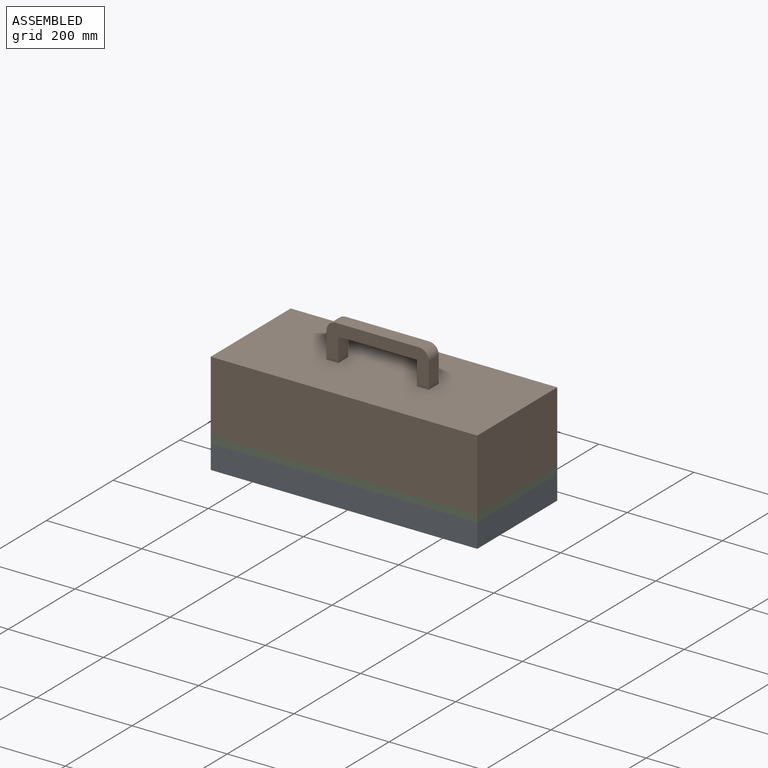
[diagram: assembled view]
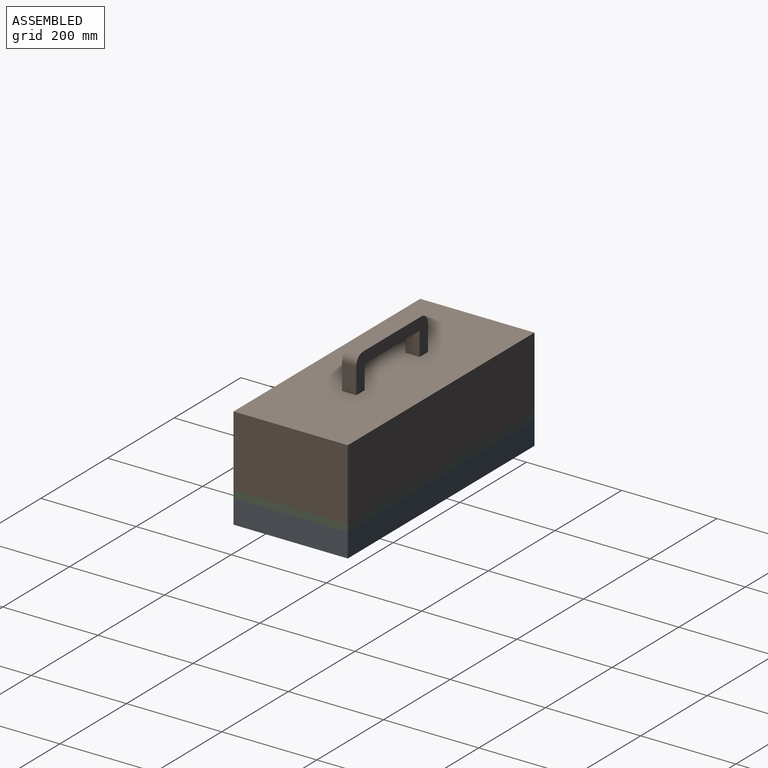
[diagram: assembled view, second angle]
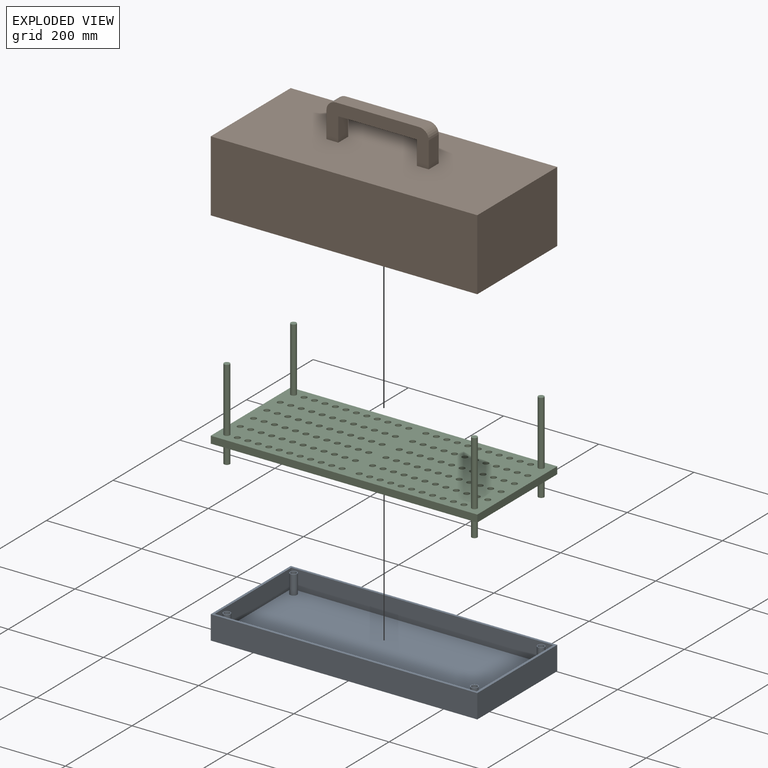
[diagram: exploded view]
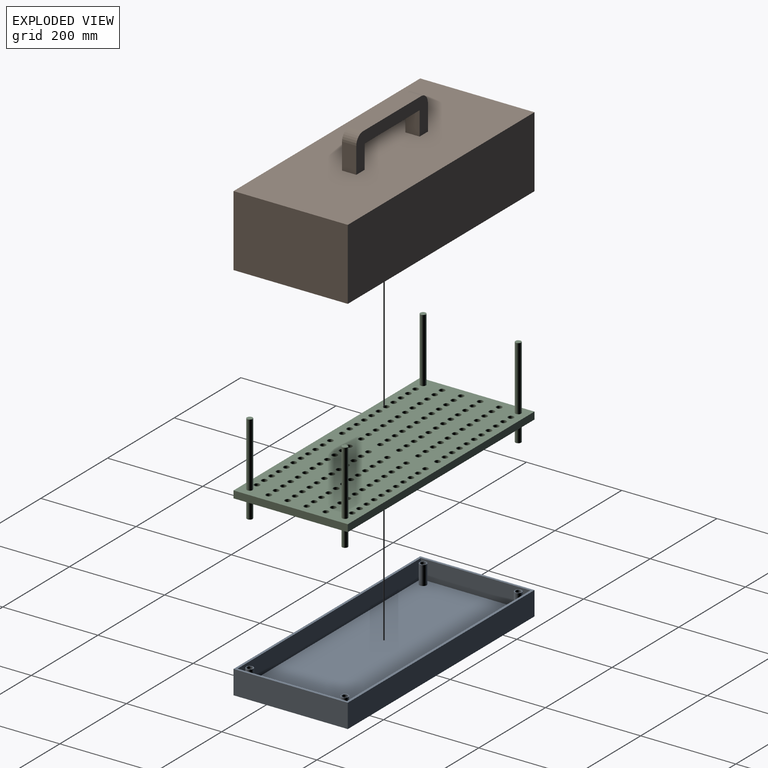
[diagram: exploded view, second angle]
ASSEMBLY  parts=3 mates=4
PART A: 27 faces, bbox 560x240x50 mm
  f0: plane 550x40mm, normal (0,1,0), area 22000mm2, adj f1,f7,f8,f10
  f1: plane 230x40mm, normal (1,0,0), area 9200mm2, adj f0,f2,f8,f10
  f2: plane 550x40mm, normal (0,-1,0), area 22000mm2, adj f1,f7,f8,f10
  f3: plane 240x50mm, normal (-1,0,0), area 12000mm2, adj f4,f6,f8,f9
  f4: plane 560x50mm, normal (0,-1,0), area 28000mm2, adj f3,f5,f8,f9
  f5: plane 240x50mm, normal (1,0,0), area 12000mm2, adj f4,f6,f8,f9
  f6: plane 560x50mm, normal (0,1,0), area 28000mm2, adj f3,f5,f8,f9
  f7: plane 230x40mm, normal (-1,0,0), area 9200mm2, adj f0,f2,f8,f10
  f8: plane 560x240mm, normal (0,0,1), area 7900mm2, adj f0,f1,f2,f3,f4,f5,f6,f7
  f9: plane 560x240mm, normal (0,0,-1), area 134400mm2, adj f3,f4,f5,f6
  f10: plane 550x230mm, normal (0,0,1), area 125793.1mm2, adj f0,f1,f2,f7,f12,f15,f19,f24
  f11: cylinder r=6mm len=40mm, axis (0,0,-1), area 1508mm2, adj f13,f14
  f12: cylinder r=7.5mm len=40mm, axis (0,0,-1), area 1885mm2, adj f10,f13
  f13: plane 15x15mm, normal (0,0,1), area 63.6mm2, adj f11,f12
  f14: plane 12x12mm, normal (0,0,1), area 113.1mm2, adj f11
  f15: cylinder r=7.5mm len=40mm, axis (0,0,-1), area 1885mm2, adj f10,f17
  f16: cylinder r=6mm len=40mm, axis (0,0,-1), area 1508mm2, adj f17,f18
  f17: plane 15x15mm, normal (0,0,1), area 63.6mm2, adj f15,f16
  f18: plane 12x12mm, normal (0,0,1), area 113.1mm2, adj f16
  f19: cylinder r=7.5mm len=40mm, axis (0,0,-1), area 1885mm2, adj f10,f21
  f20: cylinder r=6mm len=40mm, axis (0,0,-1), area 1508mm2, adj f21,f22
  f21: plane 15x15mm, normal (0,0,1), area 63.6mm2, adj f19,f20
  f22: plane 12x12mm, normal (0,0,1), area 113.1mm2, adj f20
  f23: cylinder r=6mm len=40mm, axis (0,0,-1), area 1508mm2, adj f25,f26
  f24: cylinder r=7.5mm len=40mm, axis (0,0,-1), area 1885mm2, adj f10,f25
  f25: plane 15x15mm, normal (0,0,1), area 63.6mm2, adj f23,f24
  f26: plane 12x12mm, normal (0,0,1), area 113.1mm2, adj f23
PART B: 37 faces, bbox 560x240x225 mm
  f0: plane 560x240mm, normal (0,0,-1), area 132900mm2, adj f4,f5,f6,f7,f27,f28,f29,f30
  f1: plane 550x135mm, normal (0,1,0), area 74250mm2, adj f2,f8,f9,f10
  f2: plane 230x135mm, normal (1,0,0), area 31050mm2, adj f1,f3,f9,f10
  f3: plane 550x135mm, normal (0,-1,0), area 74250mm2, adj f2,f8,f9,f10
  f4: plane 240x150mm, normal (-1,0,0), area 36000mm2, adj f0,f5,f7,f9
  f5: plane 560x150mm, normal (0,-1,0), area 84000mm2, adj f0,f4,f6,f9
  f6: plane 240x150mm, normal (1,0,0), area 36000mm2, adj f0,f5,f7,f9
  f7: plane 560x150mm, normal (0,1,0), area 84000mm2, adj f0,f4,f6,f9
  f8: plane 230x135mm, normal (-1,0,0), area 31050mm2, adj f1,f3,f9,f10
  f9: plane 560x240mm, normal (0,0,1), area 7900mm2, adj f1,f2,f3,f4,f5,f6,f7,f8
  f10: plane 550x230mm, normal (0,0,1), area 125793.1mm2, adj f1,f2,f3,f8,f12,f15,f19,f24
  f11: cylinder r=6mm len=135mm, axis (0,0,-1), area 5089.4mm2, adj f13,f14
  f12: cylinder r=7.5mm len=135mm, axis (0,0,-1), area 6361.7mm2, adj f10,f13
  f13: plane 15x15mm, normal (0,0,1), area 63.6mm2, adj f11,f12
  f14: plane 12x12mm, normal (0,0,1), area 113.1mm2, adj f11
  f15: cylinder r=7.5mm len=135mm, axis (0,0,-1), area 6361.7mm2, adj f10,f17
  f16: cylinder r=6mm len=135mm, axis (0,0,-1), area 5089.4mm2, adj f17,f18
  f17: plane 15x15mm, normal (0,0,1), area 63.6mm2, adj f15,f16
  f18: plane 12x12mm, normal (0,0,1), area 113.1mm2, adj f16
  f19: cylinder r=7.5mm len=135mm, axis (0,0,-1), area 6361.7mm2, adj f10,f21
  f20: cylinder r=6mm len=135mm, axis (0,0,-1), area 5089.4mm2, adj f21,f22
  f21: plane 15x15mm, normal (0,0,1), area 63.6mm2, adj f19,f20
  f22: plane 12x12mm, normal (0,0,1), area 113.1mm2, adj f20
  f23: cylinder r=6mm len=135mm, axis (0,0,-1), area 5089.4mm2, adj f25,f26
  f24: cylinder r=7.5mm len=135mm, axis (0,0,-1), area 6361.7mm2, adj f10,f25
  f25: plane 15x15mm, normal (0,0,1), area 63.6mm2, adj f23,f24
  f26: plane 12x12mm, normal (0,0,1), area 113.1mm2, adj f23
  f27: plane 215x75mm, normal (0,1,0), area 7703.3mm2, adj f0,f28,f30,f31,f32,f33,f34,f35
  f28: plane 55x30mm, normal (-1,0,0), area 1650mm2, adj f0,f27,f29,f35
  f29: plane 215x75mm, normal (0,-1,0), area 7703.3mm2, adj f0,f28,f30,f31,f32,f33,f34,f35
  f30: plane 55x30mm, normal (1,0,0), area 1650mm2, adj f0,f27,f29,f36
  f31: plane 175x30mm, normal (0,0,-1), area 5250mm2, adj f27,f29,f35,f36
  f32: plane 50x30mm, normal (1,0,0), area 1500mm2, adj f0,f27,f29,f34
  f33: plane 50x30mm, normal (-1,0,0), area 1500mm2, adj f0,f27,f29,f34
  f34: plane 165x30mm, normal (0,0,1), area 4950mm2, adj f27,f29,f32,f33
  f35: cylinder r=20mm len=30mm, axis (0,1,0), area 942.5mm2, adj f27,f28,f29,f31
  f36: cylinder r=20mm len=30mm, axis (0,-1,0), area 942.5mm2, adj f27,f29,f30,f31
PART C: 162 faces, bbox 560x240x190 mm
  f0: plane 560x240mm, normal (0,0,1), area 118114mm2, adj f2,f3,f4,f5,f6,f8,f10,f12
  f1: plane 560x240mm, normal (0,0,-1), area 118114mm2, adj f2,f3,f4,f5,f14,f16,f18,f20
  f2: plane 240x15mm, normal (-1,0,0), area 3600mm2, adj f0,f1,f3,f5
  f3: plane 560x15mm, normal (0,-1,0), area 8400mm2, adj f0,f1,f2,f4
  f4: plane 240x15mm, normal (1,0,0), area 3600mm2, adj f0,f1,f3,f5
  f5: plane 560x15mm, normal (0,1,0), area 8400mm2, adj f0,f1,f2,f4
  f6: cylinder r=6mm len=40mm, axis (0,0,-1), area 1508mm2, adj f0,f7
  f7: plane 12x12mm, normal (0,0,1), area 113.1mm2, adj f6
  f8: cylinder r=6mm len=40mm, axis (0,0,-1), area 1508mm2, adj f0,f9
  f9: plane 12x12mm, normal (0,0,1), area 113.1mm2, adj f8
  f10: cylinder r=6mm len=40mm, axis (0,0,-1), area 1508mm2, adj f0,f11
  f11: plane 12x12mm, normal (0,0,1), area 113.1mm2, adj f10
  f12: cylinder r=6mm len=40mm, axis (0,0,-1), area 1508mm2, adj f0,f13
  f13: plane 12x12mm, normal (0,0,1), area 113.1mm2, adj f12
  f14: cylinder r=6mm len=135mm, axis (0,0,1), area 5089.4mm2, adj f1,f15
  f15: plane 12x12mm, normal (0,0,-1), area 113.1mm2, adj f14
  f16: cylinder r=6mm len=135mm, axis (0,0,1), area 5089.4mm2, adj f1,f17
  f17: plane 12x12mm, normal (0,0,-1), area 113.1mm2, adj f16
  f18: cylinder r=6mm len=135mm, axis (0,0,1), area 5089.4mm2, adj f1,f19
  f19: plane 12x12mm, normal (0,0,-1), area 113.1mm2, adj f18
  f20: cylinder r=6mm len=135mm, axis (0,0,1), area 5089.4mm2, adj f1,f21
  f21: plane 12x12mm, normal (0,0,-1), area 113.1mm2, adj f20
  f22: cylinder r=6mm len=15mm, axis (0,0,-1), area 565.5mm2, adj f0,f1
  f23: cylinder r=6mm len=15mm, axis (0,0,-1), area 565.5mm2, adj f0,f1
  f24: cylinder r=6mm len=15mm, axis (0,0,-1), area 565.5mm2, adj f0,f1
  f25: cylinder r=6mm len=15mm, axis (0,0,-1), area 565.5mm2, adj f0,f1
  f26: cylinder r=6mm len=15mm, axis (0,0,-1), area 565.5mm2, adj f0,f1
  f27: cylinder r=6mm len=15mm, axis (0,0,-1), area 565.5mm2, adj f0,f1
  f28: cylinder r=6mm len=15mm, axis (0,0,-1), area 565.5mm2, adj f0,f1
  f29: cylinder r=6mm len=15mm, axis (0,0,-1), area 565.5mm2, adj f0,f1
  f30: cylinder r=6mm len=15mm, axis (0,0,-1), area 565.5mm2, adj f0,f1
  f31: cylinder r=6mm len=15mm, axis (0,0,-1), area 565.5mm2, adj f0,f1
  f32: cylinder r=6mm len=15mm, axis (0,0,-1), area 565.5mm2, adj f0,f1
  f33: cylinder r=6mm len=15mm, axis (0,0,-1), area 565.5mm2, adj f0,f1
  f34: cylinder r=6mm len=15mm, axis (0,0,-1), area 565.5mm2, adj f0,f1
  f35: cylinder r=6mm len=15mm, axis (0,0,-1), area 565.5mm2, adj f0,f1
  f36: cylinder r=6mm len=15mm, axis (0,0,-1), area 565.5mm2, adj f0,f1
  f37: cylinder r=6mm len=15mm, axis (0,0,-1), area 565.5mm2, adj f0,f1
  f38: cylinder r=6mm len=15mm, axis (0,0,-1), area 565.5mm2, adj f0,f1
  f39: cylinder r=6mm len=15mm, axis (0,0,-1), area 565.5mm2, adj f0,f1
  f40: cylinder r=6mm len=15mm, axis (0,0,-1), area 565.5mm2, adj f0,f1
  f41: cylinder r=6mm len=15mm, axis (0,0,-1), area 565.5mm2, adj f0,f1
  f42: cylinder r=6mm len=15mm, axis (0,0,-1), area 565.5mm2, adj f0,f1
  f43: cylinder r=6mm len=15mm, axis (0,0,-1), area 565.5mm2, adj f0,f1
  f44: cylinder r=6mm len=15mm, axis (0,0,-1), area 565.5mm2, adj f0,f1
  f45: cylinder r=6mm len=15mm, axis (0,0,-1), area 565.5mm2, adj f0,f1
  f46: cylinder r=6mm len=15mm, axis (0,0,-1), area 565.5mm2, adj f0,f1
  f47: cylinder r=6mm len=15mm, axis (0,0,-1), area 565.5mm2, adj f0,f1
  f48: cylinder r=6mm len=15mm, axis (0,0,-1), area 565.5mm2, adj f0,f1
  f49: cylinder r=6mm len=15mm, axis (0,0,-1), area 565.5mm2, adj f0,f1
  f50: cylinder r=6mm len=15mm, axis (0,0,-1), area 565.5mm2, adj f0,f1
  f51: cylinder r=6mm len=15mm, axis (0,0,-1), area 565.5mm2, adj f0,f1
  f52: cylinder r=6mm len=15mm, axis (0,0,-1), area 565.5mm2, adj f0,f1
  f53: cylinder r=6mm len=15mm, axis (0,0,-1), area 565.5mm2, adj f0,f1
  f54: cylinder r=6mm len=15mm, axis (0,0,-1), area 565.5mm2, adj f0,f1
  f55: cylinder r=6mm len=15mm, axis (0,0,-1), area 565.5mm2, adj f0,f1
  f56: cylinder r=6mm len=15mm, axis (0,0,-1), area 565.5mm2, adj f0,f1
  f57: cylinder r=6mm len=15mm, axis (0,0,-1), area 565.5mm2, adj f0,f1
  f58: cylinder r=6mm len=15mm, axis (0,0,-1), area 565.5mm2, adj f0,f1
  f59: cylinder r=6mm len=15mm, axis (0,0,-1), area 565.5mm2, adj f0,f1
  f60: cylinder r=6mm len=15mm, axis (0,0,-1), area 565.5mm2, adj f0,f1
  f61: cylinder r=6mm len=15mm, axis (0,0,-1), area 565.5mm2, adj f0,f1
  f62: cylinder r=6mm len=15mm, axis (0,0,-1), area 565.5mm2, adj f0,f1
  f63: cylinder r=6mm len=15mm, axis (0,0,-1), area 565.5mm2, adj f0,f1
  f64: cylinder r=6mm len=15mm, axis (0,0,-1), area 565.5mm2, adj f0,f1
  f65: cylinder r=6mm len=15mm, axis (0,0,-1), area 565.5mm2, adj f0,f1
  f66: cylinder r=6mm len=15mm, axis (0,0,-1), area 565.5mm2, adj f0,f1
  f67: cylinder r=6mm len=15mm, axis (0,0,-1), area 565.5mm2, adj f0,f1
  f68: cylinder r=6mm len=15mm, axis (0,0,-1), area 565.5mm2, adj f0,f1
  f69: cylinder r=6mm len=15mm, axis (0,0,-1), area 565.5mm2, adj f0,f1
  f70: cylinder r=6mm len=15mm, axis (0,0,-1), area 565.5mm2, adj f0,f1
  f71: cylinder r=6mm len=15mm, axis (0,0,-1), area 565.5mm2, adj f0,f1
  f72: cylinder r=6mm len=15mm, axis (0,0,-1), area 565.5mm2, adj f0,f1
  f73: cylinder r=6mm len=15mm, axis (0,0,-1), area 565.5mm2, adj f0,f1
  f74: cylinder r=6mm len=15mm, axis (0,0,-1), area 565.5mm2, adj f0,f1
  f75: cylinder r=6mm len=15mm, axis (0,0,-1), area 565.5mm2, adj f0,f1
  f76: cylinder r=6mm len=15mm, axis (0,0,-1), area 565.5mm2, adj f0,f1
  f77: cylinder r=6mm len=15mm, axis (0,0,-1), area 565.5mm2, adj f0,f1
  f78: cylinder r=6mm len=15mm, axis (0,0,-1), area 565.5mm2, adj f0,f1
  f79: cylinder r=6mm len=15mm, axis (0,0,-1), area 565.5mm2, adj f0,f1
  f80: cylinder r=6mm len=15mm, axis (0,0,-1), area 565.5mm2, adj f0,f1
  f81: cylinder r=6mm len=15mm, axis (0,0,-1), area 565.5mm2, adj f0,f1
  f82: cylinder r=6mm len=15mm, axis (0,0,-1), area 565.5mm2, adj f0,f1
  f83: cylinder r=6mm len=15mm, axis (0,0,-1), area 565.5mm2, adj f0,f1
  f84: cylinder r=6mm len=15mm, axis (0,0,-1), area 565.5mm2, adj f0,f1
  f85: cylinder r=6mm len=15mm, axis (0,0,-1), area 565.5mm2, adj f0,f1
  f86: cylinder r=6mm len=15mm, axis (0,0,-1), area 565.5mm2, adj f0,f1
  f87: cylinder r=6mm len=15mm, axis (0,0,-1), area 565.5mm2, adj f0,f1
  f88: cylinder r=6mm len=15mm, axis (0,0,-1), area 565.5mm2, adj f0,f1
  f89: cylinder r=6mm len=15mm, axis (0,0,-1), area 565.5mm2, adj f0,f1
  f90: cylinder r=6mm len=15mm, axis (0,0,-1), area 565.5mm2, adj f0,f1
  f91: cylinder r=6mm len=15mm, axis (0,0,-1), area 565.5mm2, adj f0,f1
  f92: cylinder r=6mm len=15mm, axis (0,0,-1), area 565.5mm2, adj f0,f1
  f93: cylinder r=6mm len=15mm, axis (0,0,-1), area 565.5mm2, adj f0,f1
  f94: cylinder r=6mm len=15mm, axis (0,0,-1), area 565.5mm2, adj f0,f1
  f95: cylinder r=6mm len=15mm, axis (0,0,-1), area 565.5mm2, adj f0,f1
  f96: cylinder r=6mm len=15mm, axis (0,0,-1), area 565.5mm2, adj f0,f1
  f97: cylinder r=6mm len=15mm, axis (0,0,-1), area 565.5mm2, adj f0,f1
  f98: cylinder r=6mm len=15mm, axis (0,0,-1), area 565.5mm2, adj f0,f1
  f99: cylinder r=6mm len=15mm, axis (0,0,-1), area 565.5mm2, adj f0,f1
  f100: cylinder r=6mm len=15mm, axis (0,0,-1), area 565.5mm2, adj f0,f1
  f101: cylinder r=6mm len=15mm, axis (0,0,-1), area 565.5mm2, adj f0,f1
  f102: cylinder r=6mm len=15mm, axis (0,0,-1), area 565.5mm2, adj f0,f1
  f103: cylinder r=6mm len=15mm, axis (0,0,-1), area 565.5mm2, adj f0,f1
  f104: cylinder r=6mm len=15mm, axis (0,0,-1), area 565.5mm2, adj f0,f1
  f105: cylinder r=6mm len=15mm, axis (0,0,-1), area 565.5mm2, adj f0,f1
  f106: cylinder r=6mm len=15mm, axis (0,0,-1), area 565.5mm2, adj f0,f1
  f107: cylinder r=6mm len=15mm, axis (0,0,-1), area 565.5mm2, adj f0,f1
  f108: cylinder r=6mm len=15mm, axis (0,0,-1), area 565.5mm2, adj f0,f1
  f109: cylinder r=6mm len=15mm, axis (0,0,-1), area 565.5mm2, adj f0,f1
  f110: cylinder r=6mm len=15mm, axis (0,0,-1), area 565.5mm2, adj f0,f1
  f111: cylinder r=6mm len=15mm, axis (0,0,-1), area 565.5mm2, adj f0,f1
  f112: cylinder r=6mm len=15mm, axis (0,0,-1), area 565.5mm2, adj f0,f1
  f113: cylinder r=6mm len=15mm, axis (0,0,-1), area 565.5mm2, adj f0,f1
  f114: cylinder r=6mm len=15mm, axis (0,0,-1), area 565.5mm2, adj f0,f1
  f115: cylinder r=6mm len=15mm, axis (0,0,-1), area 565.5mm2, adj f0,f1
  f116: cylinder r=6mm len=15mm, axis (0,0,-1), area 565.5mm2, adj f0,f1
  f117: cylinder r=6mm len=15mm, axis (0,0,-1), area 565.5mm2, adj f0,f1
  f118: cylinder r=6mm len=15mm, axis (0,0,-1), area 565.5mm2, adj f0,f1
  f119: cylinder r=6mm len=15mm, axis (0,0,-1), area 565.5mm2, adj f0,f1
  f120: cylinder r=6mm len=15mm, axis (0,0,-1), area 565.5mm2, adj f0,f1
  f121: cylinder r=6mm len=15mm, axis (0,0,-1), area 565.5mm2, adj f0,f1
  f122: cylinder r=6mm len=15mm, axis (0,0,-1), area 565.5mm2, adj f0,f1
  f123: cylinder r=6mm len=15mm, axis (0,0,-1), area 565.5mm2, adj f0,f1
  f124: cylinder r=6mm len=15mm, axis (0,0,-1), area 565.5mm2, adj f0,f1
  f125: cylinder r=6mm len=15mm, axis (0,0,-1), area 565.5mm2, adj f0,f1
  f126: cylinder r=6mm len=15mm, axis (0,0,-1), area 565.5mm2, adj f0,f1
  f127: cylinder r=6mm len=15mm, axis (0,0,-1), area 565.5mm2, adj f0,f1
  f128: cylinder r=6mm len=15mm, axis (0,0,-1), area 565.5mm2, adj f0,f1
  f129: cylinder r=6mm len=15mm, axis (0,0,-1), area 565.5mm2, adj f0,f1
  f130: cylinder r=6mm len=15mm, axis (0,0,-1), area 565.5mm2, adj f0,f1
  f131: cylinder r=6mm len=15mm, axis (0,0,-1), area 565.5mm2, adj f0,f1
  f132: cylinder r=6mm len=15mm, axis (0,0,-1), area 565.5mm2, adj f0,f1
  f133: cylinder r=6mm len=15mm, axis (0,0,-1), area 565.5mm2, adj f0,f1
  f134: cylinder r=6mm len=15mm, axis (0,0,-1), area 565.5mm2, adj f0,f1
  f135: cylinder r=6mm len=15mm, axis (0,0,-1), area 565.5mm2, adj f0,f1
  f136: cylinder r=6mm len=15mm, axis (0,0,-1), area 565.5mm2, adj f0,f1
  f137: cylinder r=6mm len=15mm, axis (0,0,-1), area 565.5mm2, adj f0,f1
  f138: cylinder r=6mm len=15mm, axis (0,0,-1), area 565.5mm2, adj f0,f1
  f139: cylinder r=6mm len=15mm, axis (0,0,-1), area 565.5mm2, adj f0,f1
  f140: cylinder r=6mm len=15mm, axis (0,0,-1), area 565.5mm2, adj f0,f1
  f141: cylinder r=6mm len=15mm, axis (0,0,-1), area 565.5mm2, adj f0,f1
  f142: cylinder r=6mm len=15mm, axis (0,0,-1), area 565.5mm2, adj f0,f1
  f143: cylinder r=6mm len=15mm, axis (0,0,-1), area 565.5mm2, adj f0,f1
  f144: cylinder r=6mm len=15mm, axis (0,0,-1), area 565.5mm2, adj f0,f1
  f145: cylinder r=6mm len=15mm, axis (0,0,-1), area 565.5mm2, adj f0,f1
  f146: cylinder r=6mm len=15mm, axis (0,0,-1), area 565.5mm2, adj f0,f1
  f147: cylinder r=6mm len=15mm, axis (0,0,-1), area 565.5mm2, adj f0,f1
  f148: cylinder r=6mm len=15mm, axis (0,0,-1), area 565.5mm2, adj f0,f1
  f149: cylinder r=6mm len=15mm, axis (0,0,-1), area 565.5mm2, adj f0,f1
  f150: cylinder r=6mm len=15mm, axis (0,0,-1), area 565.5mm2, adj f0,f1
  f151: cylinder r=6mm len=15mm, axis (0,0,-1), area 565.5mm2, adj f0,f1
  f152: cylinder r=6mm len=15mm, axis (0,0,-1), area 565.5mm2, adj f0,f1
  f153: cylinder r=6mm len=15mm, axis (0,0,-1), area 565.5mm2, adj f0,f1
  f154: cylinder r=6mm len=15mm, axis (0,0,-1), area 565.5mm2, adj f0,f1
  f155: cylinder r=6mm len=15mm, axis (0,0,-1), area 565.5mm2, adj f0,f1
  f156: cylinder r=6mm len=15mm, axis (0,0,-1), area 565.5mm2, adj f0,f1
  f157: cylinder r=6mm len=15mm, axis (0,0,-1), area 565.5mm2, adj f0,f1
  f158: cylinder r=6mm len=15mm, axis (0,0,-1), area 565.5mm2, adj f0,f1
  f159: cylinder r=6mm len=15mm, axis (0,0,-1), area 565.5mm2, adj f0,f1
  f160: cylinder r=6mm len=15mm, axis (0,0,-1), area 565.5mm2, adj f0,f1
  f161: cylinder r=6mm len=15mm, axis (0,0,-1), area 565.5mm2, adj f0,f1
PLACE A t=(4.43,64.08,48.16)mm fixed
PLACE B rot(axis=(1,0,0),180deg) t=(4.43,64.08,263.16)mm
PLACE C rot(axis=(1,0,0),180deg) t=(4.43,64.08,113.16)mm
MATE fastened C.f8 <-> A.f15  axis (0,0,-1) through (-255.57,-35.92,58.16)mm
MATE fastened C.f8 <-> B.f15  axis (0,0,-1) through (-255.57,-35.92,248.16)mm
MATE slider C.f8 <-> A.f15  axis (0,0,-1) through (-255.57,-35.92,58.16)mm
MATE slider C.f8 <-> B.f15  axis (0,0,1) through (-255.57,-35.92,248.16)mm
